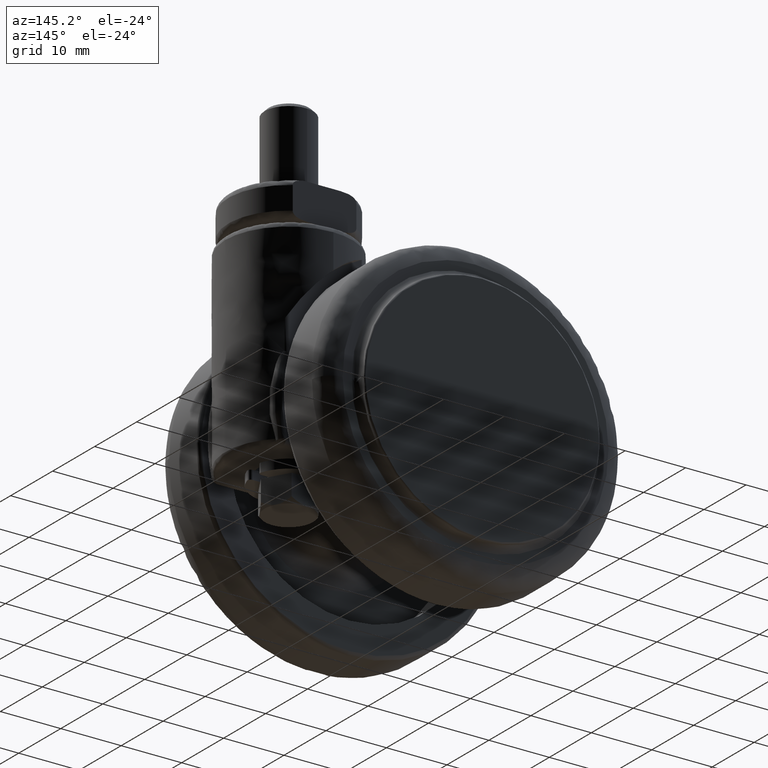
[diagram: clean part render]
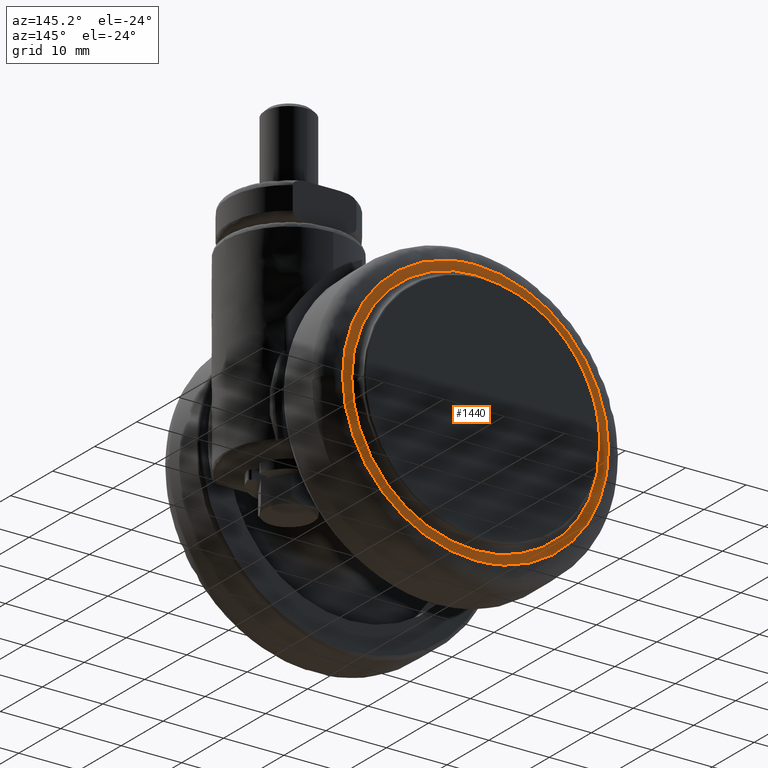
[diagram: same view with one face highlighted and labeled with its STEP entity id]
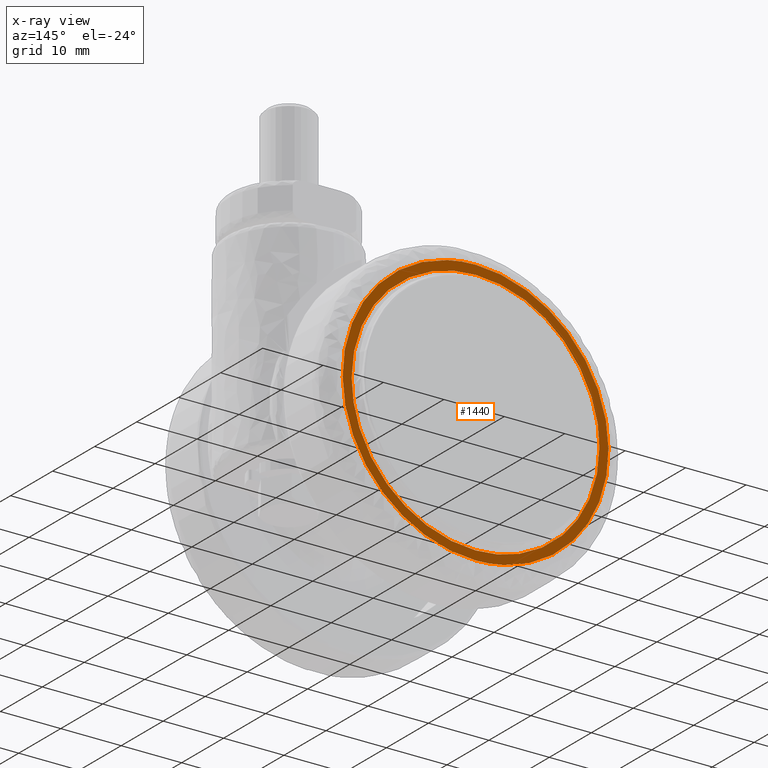
[diagram: x-ray of the same camera — body ghosted, the highlighted face saturated]
A machine part, auxiliary view. The second image highlights one B-rep face of the part: STEP entity #1440.
The next image is the same camera in x-ray: the body ghosted, the highlighted face saturated — about 0% of this face is hidden behind the body in this view.
In plain terms, the highlighted face is a freeform B-spline surface patch.
Its self-contained STEP definition (entity closure, byte-faithful):
#1236=CARTESIAN_POINT('',(21.998262973038130,20.0,-0.276452877451455));
#1237=VERTEX_POINT('',#1236);
#1251=CARTESIAN_POINT('',(2.449213E-015,20.0,22.0));
#1252=VERTEX_POINT('',#1251);
#1253=CARTESIAN_POINT('',(21.998262973038130,20.000000000000004,-0.276452877451455));
#1254=CARTESIAN_POINT('',(22.000000000552589,20.0,-0.138231895833888));
#1255=CARTESIAN_POINT('',(22.000000000550848,19.999999999999989,-6.926459E-012));
#1256=CARTESIAN_POINT('',(22.000000000273698,19.999999999999996,21.999999999996554));
#1257=CARTESIAN_POINT('',(2.449213E-015,20.0,22.0));
#1265=(BOUNDED_CURVE()B_SPLINE_CURVE(2,(#1253,#1254,#1255,#1256,#1257),.UNSPECIFIED.,.F.,.U.)B_SPLINE_CURVE_WITH_KNOTS((3,2,3),(0.747784295921642,0.750000000000000,1.0),.UNSPECIFIED.)CURVE()GEOMETRIC_REPRESENTATION_ITEM()RATIONAL_B_SPLINE_CURVE((0.994854295643815,0.997404141202207,1.0,0.707106781186548,1.0))REPRESENTATION_ITEM(''));
#1266=EDGE_CURVE('',#1237,#1252,#1265,.T.);
#1268=CARTESIAN_POINT('',(-21.998262973038120,20.0,0.276452877451456));
#1269=VERTEX_POINT('',#1268);
#1270=CARTESIAN_POINT('',(2.449213E-015,20.0,22.0));
#1271=CARTESIAN_POINT('',(-21.725262458227469,20.000000000000014,22.000000000003492));
#1272=CARTESIAN_POINT('',(-21.998262973038120,20.000000000000004,0.276452877451456));
#1280=(BOUNDED_CURVE()B_SPLINE_CURVE(2,(#1270,#1271,#1272),.UNSPECIFIED.,.F.,.U.)B_SPLINE_CURVE_WITH_KNOTS((3,3),(0.0,0.247784295921642),.UNSPECIFIED.)CURVE()GEOMETRIC_REPRESENTATION_ITEM()RATIONAL_B_SPLINE_CURVE((1.0,0.709702639984341,0.994854295643815))REPRESENTATION_ITEM(''));
#1281=EDGE_CURVE('',#1252,#1269,#1280,.T.);
#1333=CARTESIAN_POINT('',(2.449213E-015,20.0,-22.0));
#1334=VERTEX_POINT('',#1333);
#1335=CARTESIAN_POINT('',(-21.998262973038120,20.000000000000004,0.276452877451456));
#1336=CARTESIAN_POINT('',(-22.000000000552578,20.000000000000011,0.138231895833885));
#1337=CARTESIAN_POINT('',(-22.000000000550848,20.000000000000011,6.920502E-012));
#1338=CARTESIAN_POINT('',(-22.000000000273698,20.000000000000011,-21.999999999996568));
#1339=CARTESIAN_POINT('',(2.449213E-015,20.0,-22.0));
#1347=(BOUNDED_CURVE()B_SPLINE_CURVE(2,(#1335,#1336,#1337,#1338,#1339),.UNSPECIFIED.,.F.,.U.)B_SPLINE_CURVE_WITH_KNOTS((3,2,3),(0.247784295921642,0.250000000000000,0.500000000000000),.UNSPECIFIED.)CURVE()GEOMETRIC_REPRESENTATION_ITEM()RATIONAL_B_SPLINE_CURVE((0.994854295643815,0.997404141202207,1.0,0.707106781186548,1.0))REPRESENTATION_ITEM(''));
#1348=EDGE_CURVE('',#1269,#1334,#1347,.T.);
#1350=CARTESIAN_POINT('',(2.449213E-015,20.0,-22.0));
#1351=CARTESIAN_POINT('',(21.725262458227469,19.999999999999996,-22.000000000003492));
#1352=CARTESIAN_POINT('',(21.998262973038130,20.000000000000004,-0.276452877451455));
#1360=(BOUNDED_CURVE()B_SPLINE_CURVE(2,(#1350,#1351,#1352),.UNSPECIFIED.,.F.,.U.)B_SPLINE_CURVE_WITH_KNOTS((3,3),(0.500000000000000,0.747784295921642),.UNSPECIFIED.)CURVE()GEOMETRIC_REPRESENTATION_ITEM()RATIONAL_B_SPLINE_CURVE((1.0,0.709702639984341,0.994854295643815))REPRESENTATION_ITEM(''));
#1361=EDGE_CURVE('',#1334,#1237,#1360,.T.);
#1367=CARTESIAN_POINT('',(24.195889358770842,20.0,-24.197799914719461));
#1368=CARTESIAN_POINT('',(24.195889358770842,20.0,24.197801094891432));
#1369=CARTESIAN_POINT('',(-24.195890538849611,20.0,-24.197799914719461));
#1370=CARTESIAN_POINT('',(-24.195890538849611,20.0,24.197801094891432));
#1371=B_SPLINE_SURFACE_WITH_KNOTS('',1,1,((#1367,#1369),(#1368,#1370)),.UNSPECIFIED.,.F.,.F.,.U.,(2,2),(2,2),(0.0,48.395601009610893),(0.0,48.391779897620452),.UNSPECIFIED.);
#1372=ORIENTED_EDGE('',*,*,#1266,.F.);
#1373=ORIENTED_EDGE('',*,*,#1361,.F.);
#1374=ORIENTED_EDGE('',*,*,#1348,.F.);
#1375=ORIENTED_EDGE('',*,*,#1281,.F.);
#1376=EDGE_LOOP('',(#1372,#1373,#1374,#1375));
#1377=FACE_OUTER_BOUND('',#1376,.T.);
#1378=CARTESIAN_POINT('',(2.449213E-015,20.0,20.500000000000000));
#1379=VERTEX_POINT('',#1378);
#1380=CARTESIAN_POINT('',(-20.499999999126551,20.0,4.440161E-015));
#1381=VERTEX_POINT('',#1380);
#1382=CARTESIAN_POINT('',(2.449213E-015,20.0,20.500000000000000));
#1383=CARTESIAN_POINT('',(-20.499999999563265,19.999999999999993,20.500000000000004));
#1384=CARTESIAN_POINT('',(-20.499999999126544,20.000000000000004,4.440161E-015));
#1392=(BOUNDED_CURVE()B_SPLINE_CURVE(2,(#1382,#1383,#1384),.UNSPECIFIED.,.F.,.U.)B_SPLINE_CURVE_WITH_KNOTS((3,3),(0.0,0.250000000000000),.UNSPECIFIED.)CURVE()GEOMETRIC_REPRESENTATION_ITEM()RATIONAL_B_SPLINE_CURVE((1.0,0.707106781186548,1.000000000000000))REPRESENTATION_ITEM(''));
#1393=EDGE_CURVE('',#1379,#1381,#1392,.T.);
#1394=ORIENTED_EDGE('',*,*,#1393,.T.);
#1395=CARTESIAN_POINT('',(2.449213E-015,20.0,-20.500000000000000));
#1396=VERTEX_POINT('',#1395);
#1397=CARTESIAN_POINT('',(-20.499999999126544,20.000000000000004,4.440161E-015));
#1398=CARTESIAN_POINT('',(-20.499999999563272,20.0,-20.499999999999996));
#1399=CARTESIAN_POINT('',(2.449213E-015,20.0,-20.500000000000000));
#1407=(BOUNDED_CURVE()B_SPLINE_CURVE(2,(#1397,#1398,#1399),.UNSPECIFIED.,.F.,.U.)B_SPLINE_CURVE_WITH_KNOTS((3,3),(0.250000000000000,0.500000000000000),.UNSPECIFIED.)CURVE()GEOMETRIC_REPRESENTATION_ITEM()RATIONAL_B_SPLINE_CURVE((1.000000000000000,0.707106781186547,1.0))REPRESENTATION_ITEM(''));
#1408=EDGE_CURVE('',#1381,#1396,#1407,.T.);
#1409=ORIENTED_EDGE('',*,*,#1408,.T.);
#1410=CARTESIAN_POINT('',(20.499999999126558,20.0,-8.880322E-015));
#1411=VERTEX_POINT('',#1410);
#1412=CARTESIAN_POINT('',(2.449213E-015,20.0,-20.500000000000000));
#1413=CARTESIAN_POINT('',(20.499999999563265,19.999999999999993,-20.500000000000004));
#1414=CARTESIAN_POINT('',(20.499999999126562,19.999999999999993,-8.880322E-015));
#1422=(BOUNDED_CURVE()B_SPLINE_CURVE(2,(#1412,#1413,#1414),.UNSPECIFIED.,.F.,.U.)B_SPLINE_CURVE_WITH_KNOTS((3,3),(0.500000000000000,0.750000000000000),.UNSPECIFIED.)CURVE()GEOMETRIC_REPRESENTATION_ITEM()RATIONAL_B_SPLINE_CURVE((1.0,0.707106781186548,1.000000000000000))REPRESENTATION_ITEM(''));
#1423=EDGE_CURVE('',#1396,#1411,#1422,.T.);
#1424=ORIENTED_EDGE('',*,*,#1423,.T.);
#1425=CARTESIAN_POINT('',(20.499999999126569,20.0,-8.880322E-015));
#1426=CARTESIAN_POINT('',(20.499999999563300,20.0,20.500000000000011));
#1427=CARTESIAN_POINT('',(2.449213E-015,20.0,20.500000000000000));
#1435=(BOUNDED_CURVE()B_SPLINE_CURVE(2,(#1425,#1426,#1427),.UNSPECIFIED.,.F.,.U.)B_SPLINE_CURVE_WITH_KNOTS((3,3),(0.750000000000000,1.0),.UNSPECIFIED.)CURVE()GEOMETRIC_REPRESENTATION_ITEM()RATIONAL_B_SPLINE_CURVE((1.0,0.707106781186547,1.0))REPRESENTATION_ITEM(''));
#1436=EDGE_CURVE('',#1411,#1379,#1435,.T.);
#1437=ORIENTED_EDGE('',*,*,#1436,.T.);
#1438=EDGE_LOOP('',(#1394,#1409,#1424,#1437));
#1439=FACE_BOUND('',#1438,.T.);
#1440=ADVANCED_FACE('',(#1377,#1439),#1371,.F.);